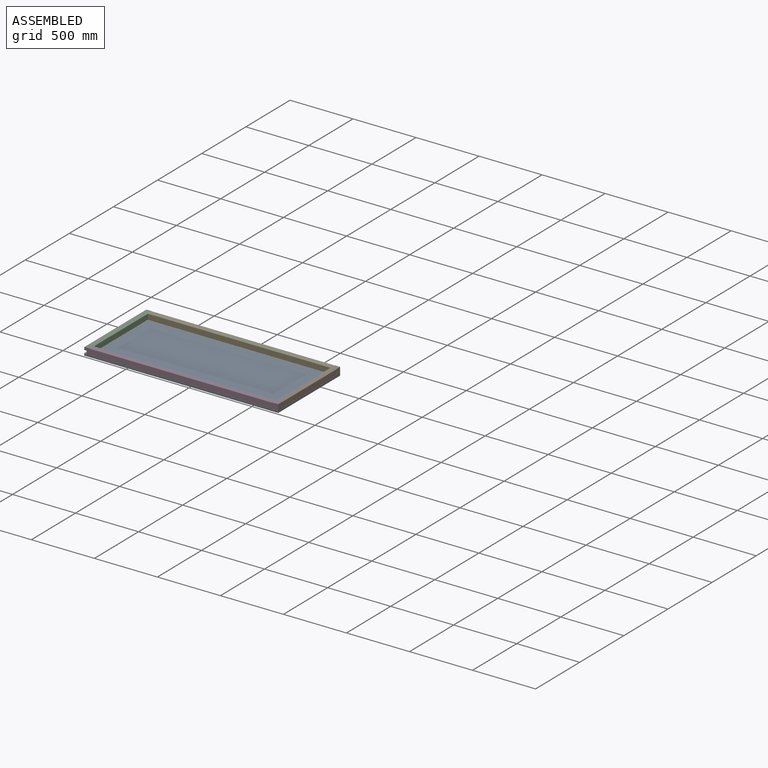
[diagram: assembled view]
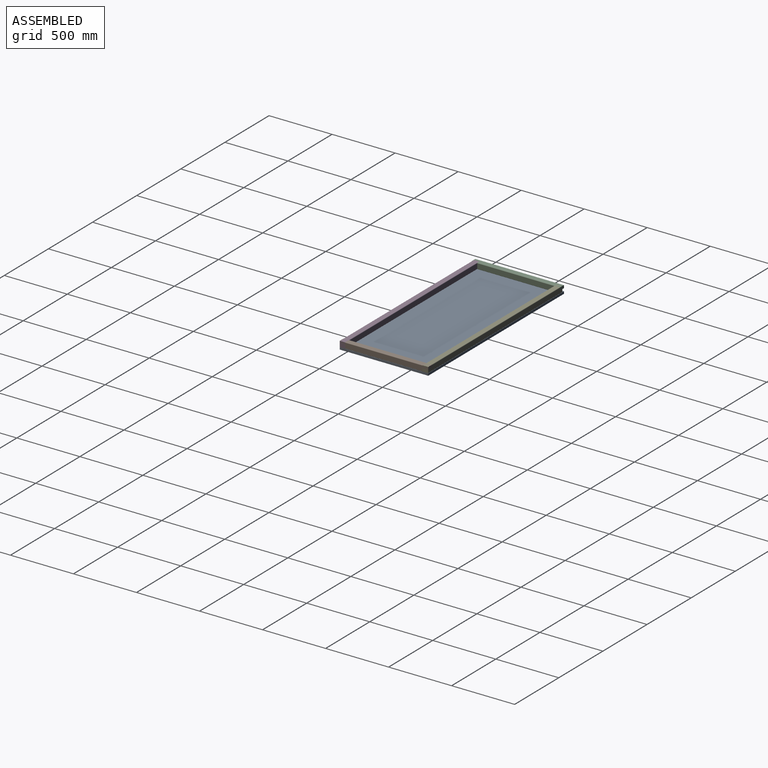
[diagram: assembled view, second angle]
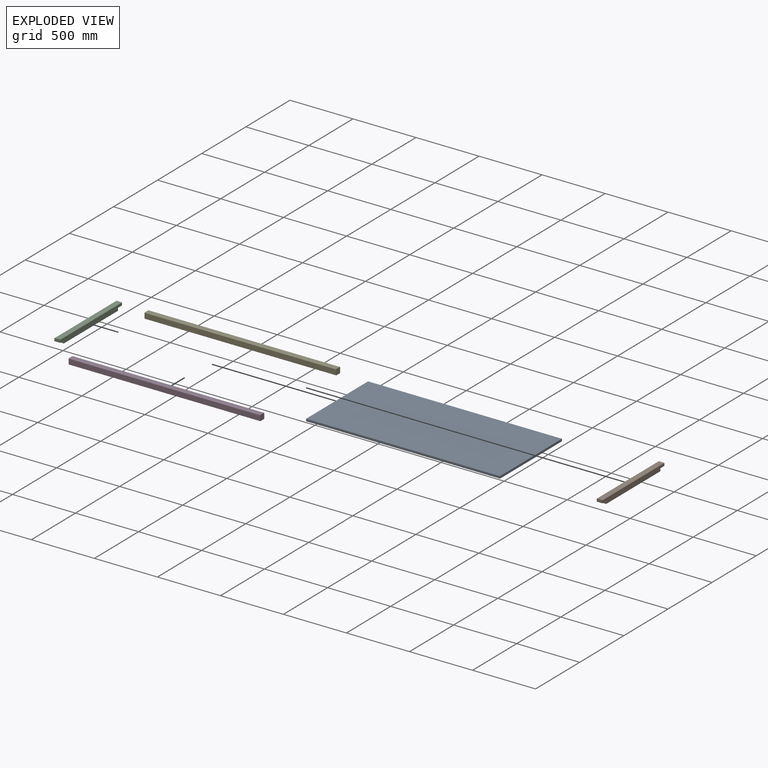
[diagram: exploded view]
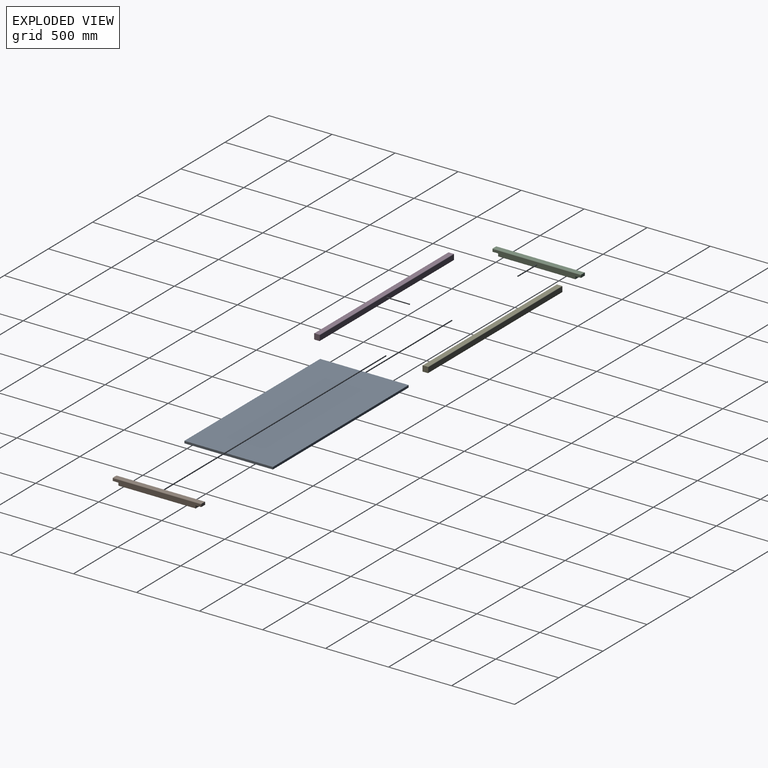
[diagram: exploded view, second angle]
ASSEMBLY  parts=5 mates=12
PART A: 6 faces, bbox 702x18x1538.5 mm
  f0: plane 1538.5x702mm, normal (0,1,0), area 1080027mm2, adj f1,f3,f4,f5
  f1: plane 1538.5x18mm, normal (-1,0,0), area 27693mm2, adj f0,f2,f4,f5
  f2: plane 1538.5x702mm, normal (0,-1,0), area 1080027mm2, adj f1,f3,f4,f5
  f3: plane 1538.5x18mm, normal (1,0,0), area 27693mm2, adj f0,f2,f4,f5
  f4: plane 702x18mm, normal (0,0,1), area 12636mm2, adj f0,f1,f2,f3
  f5: plane 702x18mm, normal (0,0,-1), area 12636mm2, adj f0,f1,f2,f3
PART B: 14 faces, bbox 45x45x702 mm
  f0: plane 702x39mm, normal (0,-1,0), area 25623mm2, adj f2,f7,f8,f9,f10,f11,f12,f13
  f1: plane 702x39mm, normal (0,1,0), area 25623mm2, adj f4,f5,f8,f9,f10,f11,f12,f13
  f2: cylinder r=3mm len=612mm, axis (0,0,-1), area 2884mm2, adj f0,f3,f10,f12
  f3: plane 612x39mm, normal (1,0,0), area 23868mm2, adj f2,f4,f10,f12
  f4: cylinder r=3mm len=612mm, axis (0,0,-1), area 2884mm2, adj f1,f3,f10,f12
  f5: cylinder r=3mm len=702mm, axis (0,0,-1), area 3308.1mm2, adj f1,f6,f8,f9
  f6: plane 702x39mm, normal (-1,0,0), area 27378mm2, adj f5,f7,f8,f9
  f7: cylinder r=3mm len=702mm, axis (0,0,-1), area 3308.1mm2, adj f0,f6,f8,f9
  f8: plane 45x22.5mm, normal (0,0,1), area 1008.6mm2, adj f0,f1,f5,f6,f7,f13
  f9: plane 45x22.5mm, normal (0,0,-1), area 1008.6mm2, adj f0,f1,f5,f6,f7,f11
  f10: plane 45x22.5mm, normal (0,0,-1), area 1008.6mm2, adj f0,f1,f2,f3,f4,f11
  f11: plane 45x45mm, normal (1,0,0), area 2025mm2, adj f0,f1,f9,f10
  f12: plane 45x22.5mm, normal (0,0,1), area 1008.6mm2, adj f0,f1,f2,f3,f4,f13
  f13: plane 45x45mm, normal (1,0,0), area 2025mm2, adj f0,f1,f8,f12
PART C: same geometry as B
PART D: 10 faces, bbox 45x45x1520 mm
  f0: plane 1520x39mm, normal (0,-1,0), area 59280mm2, adj f1,f7,f8,f9
  f1: cylinder r=3mm len=1520mm, axis (0,0,1), area 7162.8mm2, adj f0,f2,f8,f9
  f2: plane 1520x39mm, normal (1,0,0), area 59280mm2, adj f1,f3,f8,f9
  f3: cylinder r=3mm len=1520mm, axis (0,0,1), area 7162.8mm2, adj f2,f4,f8,f9
  f4: plane 1520x39mm, normal (0,1,0), area 59280mm2, adj f3,f5,f8,f9
  f5: cylinder r=3mm len=1520mm, axis (0,0,1), area 7162.8mm2, adj f4,f6,f8,f9
  f6: plane 1520x39mm, normal (-1,0,0), area 59280mm2, adj f5,f7,f8,f9
  f7: cylinder r=3mm len=1520mm, axis (0,0,1), area 7162.8mm2, adj f0,f6,f8,f9
  f8: plane 45x45mm, normal (0,0,-1), area 2017.3mm2, adj f0,f1,f2,f3,f4,f5,f6,f7
  f9: plane 45x45mm, normal (0,0,1), area 2017.3mm2, adj f0,f1,f2,f3,f4,f5,f6,f7
PART E: same geometry as D
PLACE A rot(axis=(-0.58,-0.58,0.58),120deg) t=(-272.26,-82.21,1916.15)mm
PLACE B rot(axis=(-0.58,0.58,0.58),120deg) t=(-245.32,-528.89,1974.62)mm
PLACE C rot(axis=(0.58,0.58,-0.58),120deg) t=(-1837.7,173.11,1974.62)mm
PLACE D rot(axis=(0,1,0),90deg) t=(-272.26,-555.83,1974.62)mm
PLACE E rot(axis=(0,1,0),90deg) t=(-272.26,101.17,1974.62)mm
MATE planar A.f1 <-> D.f0  axis (0,-1,0) through (-1041.51,-528.89,1982.33)mm
MATE planar C.f9 <-> A.f3  axis (0,1,0) through (-1788.26,173.11,2025.04)mm
MATE planar B.f0 <-> A.f5  axis (1,0,0) through (-272.26,-177.89,2014.5)mm
MATE planar B.f3 <-> A.f2  axis (0,0,-1) through (-294.76,-177.89,1991.33)mm
MATE planar B.f8 <-> A.f3  axis (0,1,0) through (-294.76,173.11,2025.04)mm
MATE planar C.f0 <-> A.f4  axis (-1,0,0) through (-1810.76,-177.89,2014.5)mm
MATE planar A.f2 <-> E.f2  axis (0,0,1) through (-1041.51,-177.89,1991.33)mm
MATE planar E.f9 <-> A.f5  axis (1,0,0) through (-272.26,150.61,2013.83)mm
MATE planar A.f3 <-> E.f4  axis (0,1,0) through (-1041.51,173.11,1982.33)mm
MATE planar A.f2 <-> C.f3  axis (0,0,1) through (-1041.51,-177.89,1991.33)mm
MATE planar D.f9 <-> A.f5  axis (1,0,0) through (-272.26,-506.39,2013.83)mm
MATE planar A.f2 <-> D.f2  axis (0,0,1) through (-1041.51,-177.89,1991.33)mm
